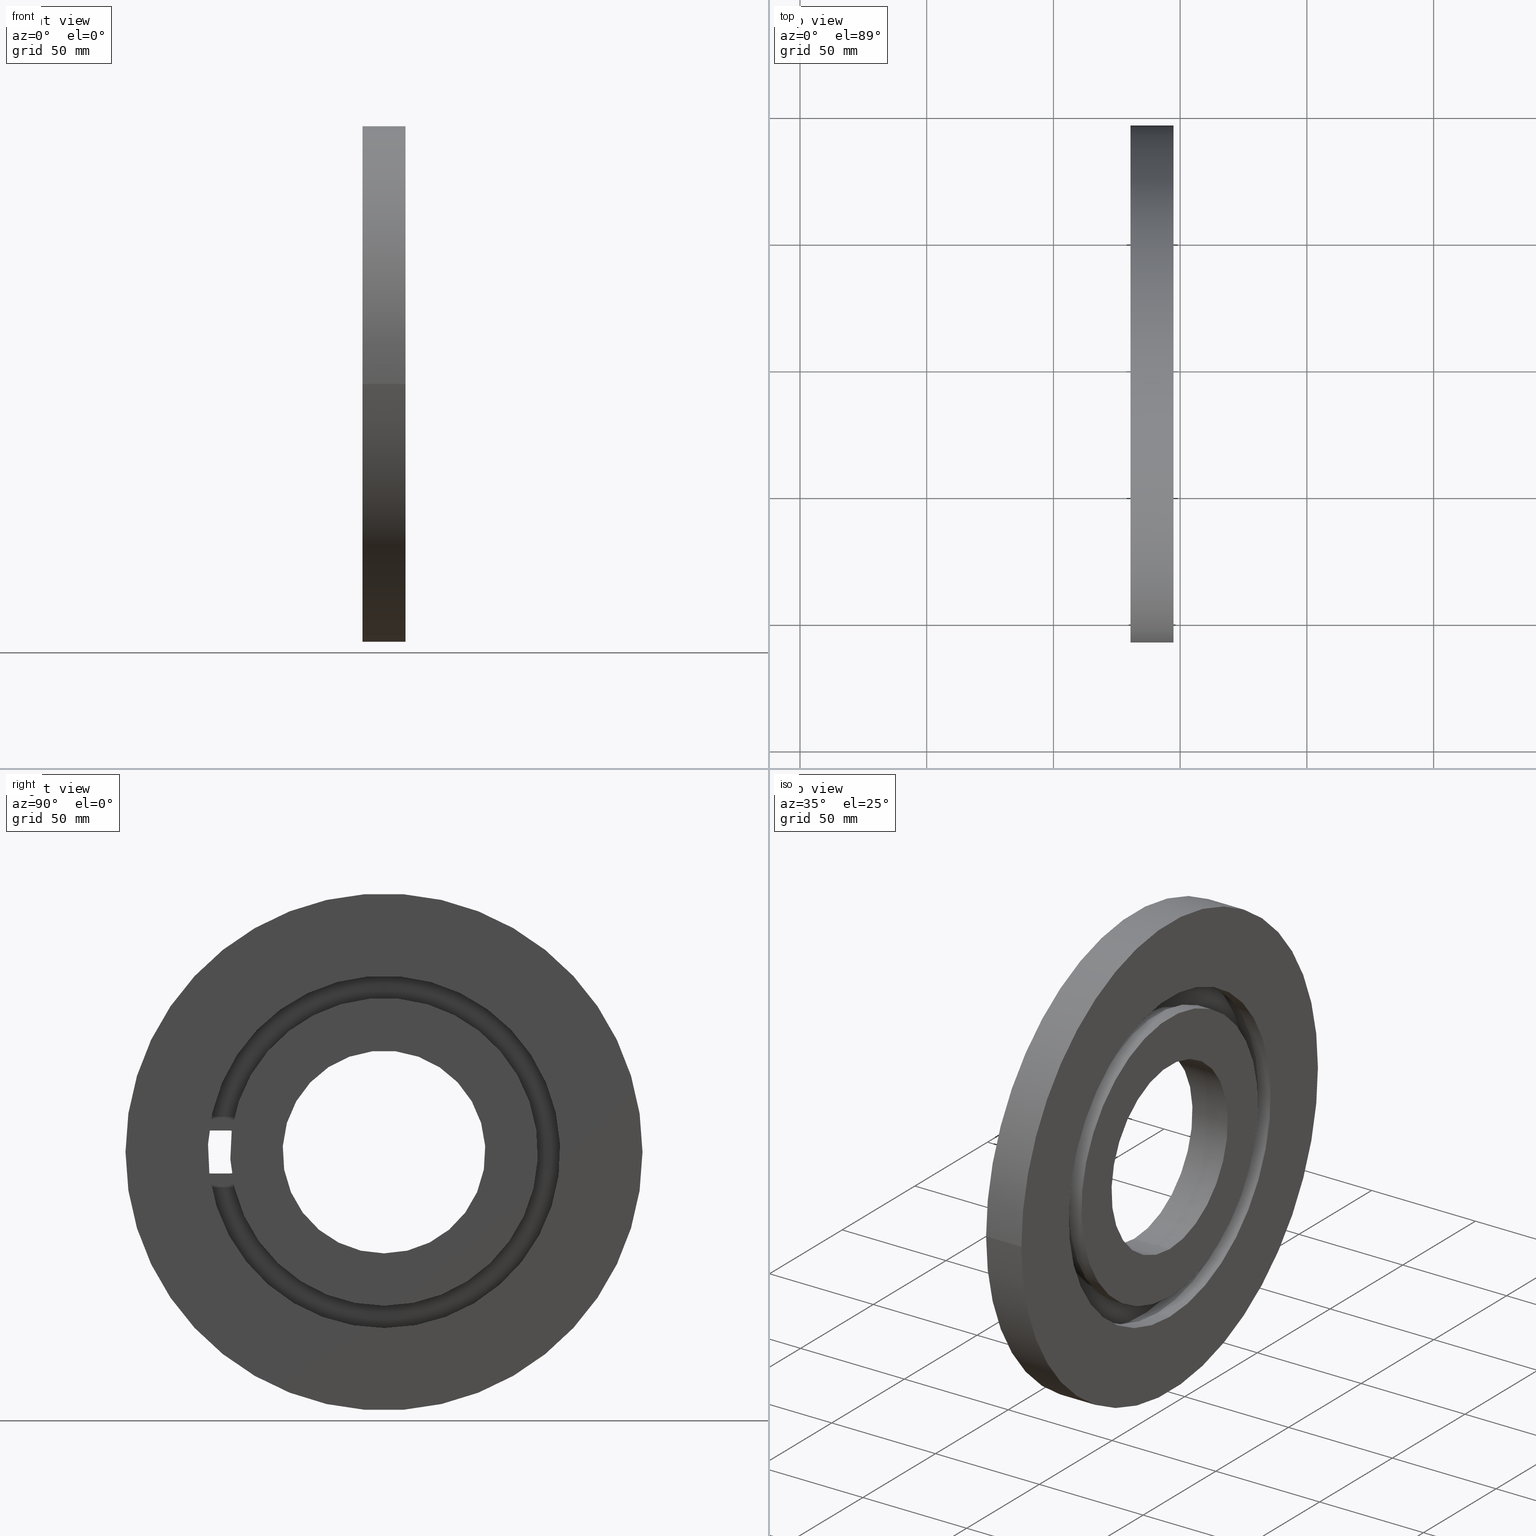
[diagram: canonical four-view strip — front | top / right | iso, engineering-drawing reading convention]
A machine part, canonical four-view strip (front | top / right | iso — engineering-drawing reading convention). The complete STEP part file that produces these views, byte-faithful:
ISO-10303-21;
HEADER;
/* Generated by software containing ST-Developer
 * from STEP Tools, Inc. (www.steptools.com) 
 */

FILE_DESCRIPTION(
/* description */ (''),
/* implementation_level */ '2;1');

FILE_NAME(
/* name */ 
'C:\\Vault_workspace\\Products\\Workspaces\\Jason Krenzer\\9.FL.F90T2-
PAR.stp',
/* time_stamp */ '2023-07-25T15:35:56-04:00',
/* author */ ('jkrenzer'),
/* organization */ (''),
/* preprocessor_version */ 'ST-DEVELOPER v18.1',
/* originating_system */ 'Autodesk Inventor 2022',
/* authorisation */ '');

FILE_SCHEMA (('AUTOMOTIVE_DESIGN { 1 0 10303 214 3 1 1 }'));
ENDSEC;

DATA;
#10=MECHANICAL_DESIGN_GEOMETRIC_PRESENTATION_REPRESENTATION('',(#17),#736);
#11=ITEM_DEFINED_TRANSFORMATION($,$,#432,#483);
#12=(
REPRESENTATION_RELATIONSHIP($,$,#750,#749)
REPRESENTATION_RELATIONSHIP_WITH_TRANSFORMATION(#11)
SHAPE_REPRESENTATION_RELATIONSHIP()
);
#13=CONTEXT_DEPENDENT_SHAPE_REPRESENTATION(#12,#748);
#14=NEXT_ASSEMBLY_USAGE_OCCURRENCE(
'9_FL_F90T2   (MTC, Universal Flange, Type 2):1',
'9_FL_F90T2   (MTC, Universal Flange, Type 2):1',
'9_FL_F90T2   (MTC, Universal Flange, Type 2):1',#752,#753,
'9_FL_F90T2   (MTC, Universal Flange, Type 2):1');
#15=SHAPE_REPRESENTATION_RELATIONSHIP('SRR','None',#750,#16);
#16=ADVANCED_BREP_SHAPE_REPRESENTATION('',(#18),#735);
#17=STYLED_ITEM('',(#410),#18);
#18=MANIFOLD_SOLID_BREP('Solid1',#397);
#19=LINE('',#626,#45);
#20=LINE('',#630,#46);
#21=LINE('',#634,#47);
#22=LINE('',#638,#48);
#23=LINE('',#642,#49);
#24=LINE('',#648,#50);
#25=LINE('',#650,#51);
#26=LINE('',#651,#52);
#27=LINE('',#655,#53);
#28=LINE('',#658,#54);
#29=LINE('',#664,#55);
#30=LINE('',#669,#56);
#31=LINE('',#681,#57);
#32=LINE('',#685,#58);
#33=LINE('',#688,#59);
#34=LINE('',#690,#60);
#35=LINE('',#696,#61);
#36=LINE('',#698,#62);
#37=LINE('',#702,#63);
#38=LINE('',#705,#64);
#39=LINE('',#708,#65);
#40=LINE('',#712,#66);
#41=LINE('',#718,#67);
#42=LINE('',#724,#68);
#43=LINE('',#726,#69);
#44=LINE('',#729,#70);
#45=VECTOR('',#498,102.);
#46=VECTOR('',#501,8.);
#47=VECTOR('',#504,9.);
#48=VECTOR('',#507,8.);
#49=VECTOR('',#510,9.);
#50=VECTOR('',#517,3.5);
#51=VECTOR('',#518,8.);
#52=VECTOR('',#519,3.5);
#53=VECTOR('',#522,0.4999999999999);
#54=VECTOR('',#525,4.);
#55=VECTOR('',#532,58.);
#56=VECTOR('',#537,0.4999999999999);
#57=VECTOR('',#550,8.);
#58=VECTOR('',#555,0.4999999999999);
#59=VECTOR('',#558,0.4999999999999);
#60=VECTOR('',#559,72.5);
#61=VECTOR('',#568,3.5);
#62=VECTOR('',#569,4.);
#63=VECTOR('',#574,9.);
#64=VECTOR('',#579,4.);
#65=VECTOR('',#584,3.5);
#66=VECTOR('',#589,4.);
#67=VECTOR('',#596,60.7);
#68=VECTOR('',#605,40.);
#69=VECTOR('',#608,9.);
#70=VECTOR('',#613,69.5);
#71=CYLINDRICAL_SURFACE('',#436,102.);
#72=CYLINDRICAL_SURFACE('',#445,4.);
#73=CYLINDRICAL_SURFACE('',#448,58.);
#74=CYLINDRICAL_SURFACE('',#459,72.5);
#75=CYLINDRICAL_SURFACE('',#464,4.);
#76=CYLINDRICAL_SURFACE('',#468,4.);
#77=CYLINDRICAL_SURFACE('',#471,4.);
#78=CYLINDRICAL_SURFACE('',#475,60.7);
#79=CYLINDRICAL_SURFACE('',#479,40.);
#80=CYLINDRICAL_SURFACE('',#482,69.5);
#81=FACE_BOUND('',#110,.T.);
#82=FACE_BOUND('',#113,.T.);
#83=FACE_BOUND('',#114,.T.);
#84=FACE_BOUND('',#121,.T.);
#85=FACE_BOUND('',#129,.T.);
#86=FACE_BOUND('',#132,.T.);
#87=FACE_OUTER_BOUND('',#109,.T.);
#88=FACE_OUTER_BOUND('',#111,.T.);
#89=FACE_OUTER_BOUND('',#112,.T.);
#90=FACE_OUTER_BOUND('',#115,.T.);
#91=FACE_OUTER_BOUND('',#116,.T.);
#92=FACE_OUTER_BOUND('',#117,.T.);
#93=FACE_OUTER_BOUND('',#118,.T.);
#94=FACE_OUTER_BOUND('',#119,.T.);
#95=FACE_OUTER_BOUND('',#120,.T.);
#96=FACE_OUTER_BOUND('',#122,.T.);
#97=FACE_OUTER_BOUND('',#123,.T.);
#98=FACE_OUTER_BOUND('',#124,.T.);
#99=FACE_OUTER_BOUND('',#125,.T.);
#100=FACE_OUTER_BOUND('',#126,.T.);
#101=FACE_OUTER_BOUND('',#127,.T.);
#102=FACE_OUTER_BOUND('',#128,.T.);
#103=FACE_OUTER_BOUND('',#130,.T.);
#104=FACE_OUTER_BOUND('',#131,.T.);
#105=FACE_OUTER_BOUND('',#133,.T.);
#106=FACE_OUTER_BOUND('',#134,.T.);
#107=FACE_OUTER_BOUND('',#135,.T.);
#108=FACE_OUTER_BOUND('',#136,.T.);
#109=EDGE_LOOP('',(#255));
#110=EDGE_LOOP('',(#256));
#111=EDGE_LOOP('',(#257,#258,#259,#260));
#112=EDGE_LOOP('',(#261));
#113=EDGE_LOOP('',(#262,#263,#264,#265,#266,#267,#268,#269));
#114=EDGE_LOOP('',(#270));
#115=EDGE_LOOP('',(#271,#272,#273,#274));
#116=EDGE_LOOP('',(#275,#276,#277,#278,#279,#280));
#117=EDGE_LOOP('',(#281,#282,#283,#284,#285,#286,#287,#288));
#118=EDGE_LOOP('',(#289,#290,#291,#292,#293,#294,#295,#296,#297,#298));
#119=EDGE_LOOP('',(#299,#300,#301,#302,#303,#304,#305,#306));
#120=EDGE_LOOP('',(#307));
#121=EDGE_LOOP('',(#308));
#122=EDGE_LOOP('',(#309,#310,#311,#312,#313,#314));
#123=EDGE_LOOP('',(#315,#316,#317,#318));
#124=EDGE_LOOP('',(#319,#320,#321,#322,#323,#324));
#125=EDGE_LOOP('',(#325,#326,#327,#328));
#126=EDGE_LOOP('',(#329,#330,#331,#332));
#127=EDGE_LOOP('',(#333,#334,#335,#336,#337,#338));
#128=EDGE_LOOP('',(#339));
#129=EDGE_LOOP('',(#340));
#130=EDGE_LOOP('',(#341,#342,#343,#344));
#131=EDGE_LOOP('',(#345));
#132=EDGE_LOOP('',(#346));
#133=EDGE_LOOP('',(#347,#348,#349,#350));
#134=EDGE_LOOP('',(#351,#352,#353,#354));
#135=EDGE_LOOP('',(#355,#356,#357,#358));
#136=EDGE_LOOP('',(#359,#360,#361,#362));
#137=CIRCLE('',#434,102.);
#138=CIRCLE('',#435,69.5);
#139=CIRCLE('',#437,102.);
#140=CIRCLE('',#439,4.);
#141=CIRCLE('',#440,4.);
#142=CIRCLE('',#441,4.);
#143=CIRCLE('',#442,4.);
#144=CIRCLE('',#443,40.);
#145=CIRCLE('',#446,4.);
#146=CIRCLE('',#447,4.);
#147=CIRCLE('',#449,58.);
#148=CIRCLE('',#450,58.);
#149=CIRCLE('',#451,58.);
#150=CIRCLE('',#452,58.);
#151=CIRCLE('',#454,72.5);
#152=CIRCLE('',#455,72.5);
#153=CIRCLE('',#456,4.);
#154=CIRCLE('',#457,4.);
#155=CIRCLE('',#458,4.);
#156=CIRCLE('',#460,72.5);
#157=CIRCLE('',#461,72.5);
#158=CIRCLE('',#463,69.5);
#159=CIRCLE('',#465,4.);
#160=CIRCLE('',#467,4.);
#161=CIRCLE('',#472,4.);
#162=CIRCLE('',#474,60.7);
#163=CIRCLE('',#476,60.7);
#164=CIRCLE('',#478,40.);
#165=VERTEX_POINT('',#619);
#166=VERTEX_POINT('',#621);
#167=VERTEX_POINT('',#624);
#168=VERTEX_POINT('',#628);
#169=VERTEX_POINT('',#629);
#170=VERTEX_POINT('',#631);
#171=VERTEX_POINT('',#633);
#172=VERTEX_POINT('',#635);
#173=VERTEX_POINT('',#637);
#174=VERTEX_POINT('',#639);
#175=VERTEX_POINT('',#641);
#176=VERTEX_POINT('',#644);
#177=VERTEX_POINT('',#647);
#178=VERTEX_POINT('',#649);
#179=VERTEX_POINT('',#653);
#180=VERTEX_POINT('',#654);
#181=VERTEX_POINT('',#657);
#182=VERTEX_POINT('',#661);
#183=VERTEX_POINT('',#663);
#184=VERTEX_POINT('',#666);
#185=VERTEX_POINT('',#668);
#186=VERTEX_POINT('',#672);
#187=VERTEX_POINT('',#673);
#188=VERTEX_POINT('',#675);
#189=VERTEX_POINT('',#678);
#190=VERTEX_POINT('',#680);
#191=VERTEX_POINT('',#684);
#192=VERTEX_POINT('',#686);
#193=VERTEX_POINT('',#689);
#194=VERTEX_POINT('',#693);
#195=VERTEX_POINT('',#697);
#196=VERTEX_POINT('',#701);
#197=VERTEX_POINT('',#710);
#198=VERTEX_POINT('',#714);
#199=VERTEX_POINT('',#717);
#200=VERTEX_POINT('',#721);
#201=EDGE_CURVE('',#165,#165,#137,.T.);
#202=EDGE_CURVE('',#166,#166,#138,.T.);
#203=EDGE_CURVE('',#167,#167,#139,.T.);
#204=EDGE_CURVE('',#167,#165,#19,.T.);
#205=EDGE_CURVE('',#168,#169,#20,.T.);
#206=EDGE_CURVE('',#168,#170,#140,.T.);
#207=EDGE_CURVE('',#171,#170,#21,.T.);
#208=EDGE_CURVE('',#171,#172,#141,.T.);
#209=EDGE_CURVE('',#173,#172,#22,.T.);
#210=EDGE_CURVE('',#173,#174,#142,.T.);
#211=EDGE_CURVE('',#175,#174,#23,.T.);
#212=EDGE_CURVE('',#175,#169,#143,.T.);
#213=EDGE_CURVE('',#176,#176,#144,.T.);
#214=EDGE_CURVE('',#177,#169,#24,.T.);
#215=EDGE_CURVE('',#177,#178,#25,.T.);
#216=EDGE_CURVE('',#168,#178,#26,.T.);
#217=EDGE_CURVE('',#179,#180,#27,.T.);
#218=EDGE_CURVE('',#177,#180,#145,.T.);
#219=EDGE_CURVE('',#175,#181,#28,.T.);
#220=EDGE_CURVE('',#179,#181,#146,.T.);
#221=EDGE_CURVE('',#182,#182,#147,.T.);
#222=EDGE_CURVE('',#182,#183,#29,.T.);
#223=EDGE_CURVE('',#180,#183,#148,.T.);
#224=EDGE_CURVE('',#184,#179,#149,.T.);
#225=EDGE_CURVE('',#184,#185,#30,.T.);
#226=EDGE_CURVE('',#183,#185,#150,.T.);
#227=EDGE_CURVE('',#186,#187,#151,.T.);
#228=EDGE_CURVE('',#187,#188,#152,.T.);
#229=EDGE_CURVE('',#188,#178,#153,.T.);
#230=EDGE_CURVE('',#185,#189,#154,.T.);
#231=EDGE_CURVE('',#190,#189,#31,.T.);
#232=EDGE_CURVE('',#190,#186,#155,.T.);
#233=EDGE_CURVE('',#191,#186,#32,.T.);
#234=EDGE_CURVE('',#192,#191,#156,.T.);
#235=EDGE_CURVE('',#192,#188,#33,.T.);
#236=EDGE_CURVE('',#187,#193,#34,.T.);
#237=EDGE_CURVE('',#193,#193,#157,.T.);
#238=EDGE_CURVE('',#194,#194,#158,.T.);
#239=EDGE_CURVE('',#190,#172,#35,.T.);
#240=EDGE_CURVE('',#171,#195,#36,.T.);
#241=EDGE_CURVE('',#191,#195,#159,.T.);
#242=EDGE_CURVE('',#195,#196,#37,.T.);
#243=EDGE_CURVE('',#196,#192,#160,.T.);
#244=EDGE_CURVE('',#196,#170,#38,.T.);
#245=EDGE_CURVE('',#173,#189,#39,.T.);
#246=EDGE_CURVE('',#197,#184,#161,.T.);
#247=EDGE_CURVE('',#197,#174,#40,.T.);
#248=EDGE_CURVE('',#198,#198,#162,.T.);
#249=EDGE_CURVE('',#198,#199,#41,.T.);
#250=EDGE_CURVE('',#199,#199,#163,.T.);
#251=EDGE_CURVE('',#200,#200,#164,.T.);
#252=EDGE_CURVE('',#200,#176,#42,.T.);
#253=EDGE_CURVE('',#181,#197,#43,.T.);
#254=EDGE_CURVE('',#166,#194,#44,.T.);
#255=ORIENTED_EDGE('',*,*,#201,.T.);
#256=ORIENTED_EDGE('',*,*,#202,.T.);
#257=ORIENTED_EDGE('',*,*,#203,.T.);
#258=ORIENTED_EDGE('',*,*,#204,.T.);
#259=ORIENTED_EDGE('',*,*,#201,.F.);
#260=ORIENTED_EDGE('',*,*,#204,.F.);
#261=ORIENTED_EDGE('',*,*,#203,.F.);
#262=ORIENTED_EDGE('',*,*,#205,.F.);
#263=ORIENTED_EDGE('',*,*,#206,.T.);
#264=ORIENTED_EDGE('',*,*,#207,.F.);
#265=ORIENTED_EDGE('',*,*,#208,.T.);
#266=ORIENTED_EDGE('',*,*,#209,.F.);
#267=ORIENTED_EDGE('',*,*,#210,.T.);
#268=ORIENTED_EDGE('',*,*,#211,.F.);
#269=ORIENTED_EDGE('',*,*,#212,.T.);
#270=ORIENTED_EDGE('',*,*,#213,.T.);
#271=ORIENTED_EDGE('',*,*,#214,.F.);
#272=ORIENTED_EDGE('',*,*,#215,.T.);
#273=ORIENTED_EDGE('',*,*,#216,.F.);
#274=ORIENTED_EDGE('',*,*,#205,.T.);
#275=ORIENTED_EDGE('',*,*,#217,.T.);
#276=ORIENTED_EDGE('',*,*,#218,.F.);
#277=ORIENTED_EDGE('',*,*,#214,.T.);
#278=ORIENTED_EDGE('',*,*,#212,.F.);
#279=ORIENTED_EDGE('',*,*,#219,.T.);
#280=ORIENTED_EDGE('',*,*,#220,.F.);
#281=ORIENTED_EDGE('',*,*,#221,.F.);
#282=ORIENTED_EDGE('',*,*,#222,.T.);
#283=ORIENTED_EDGE('',*,*,#223,.F.);
#284=ORIENTED_EDGE('',*,*,#217,.F.);
#285=ORIENTED_EDGE('',*,*,#224,.F.);
#286=ORIENTED_EDGE('',*,*,#225,.T.);
#287=ORIENTED_EDGE('',*,*,#226,.F.);
#288=ORIENTED_EDGE('',*,*,#222,.F.);
#289=ORIENTED_EDGE('',*,*,#227,.T.);
#290=ORIENTED_EDGE('',*,*,#228,.T.);
#291=ORIENTED_EDGE('',*,*,#229,.T.);
#292=ORIENTED_EDGE('',*,*,#215,.F.);
#293=ORIENTED_EDGE('',*,*,#218,.T.);
#294=ORIENTED_EDGE('',*,*,#223,.T.);
#295=ORIENTED_EDGE('',*,*,#226,.T.);
#296=ORIENTED_EDGE('',*,*,#230,.T.);
#297=ORIENTED_EDGE('',*,*,#231,.F.);
#298=ORIENTED_EDGE('',*,*,#232,.T.);
#299=ORIENTED_EDGE('',*,*,#227,.F.);
#300=ORIENTED_EDGE('',*,*,#233,.F.);
#301=ORIENTED_EDGE('',*,*,#234,.F.);
#302=ORIENTED_EDGE('',*,*,#235,.T.);
#303=ORIENTED_EDGE('',*,*,#228,.F.);
#304=ORIENTED_EDGE('',*,*,#236,.T.);
#305=ORIENTED_EDGE('',*,*,#237,.F.);
#306=ORIENTED_EDGE('',*,*,#236,.F.);
#307=ORIENTED_EDGE('',*,*,#237,.T.);
#308=ORIENTED_EDGE('',*,*,#238,.T.);
#309=ORIENTED_EDGE('',*,*,#233,.T.);
#310=ORIENTED_EDGE('',*,*,#232,.F.);
#311=ORIENTED_EDGE('',*,*,#239,.T.);
#312=ORIENTED_EDGE('',*,*,#208,.F.);
#313=ORIENTED_EDGE('',*,*,#240,.T.);
#314=ORIENTED_EDGE('',*,*,#241,.F.);
#315=ORIENTED_EDGE('',*,*,#241,.T.);
#316=ORIENTED_EDGE('',*,*,#242,.T.);
#317=ORIENTED_EDGE('',*,*,#243,.T.);
#318=ORIENTED_EDGE('',*,*,#234,.T.);
#319=ORIENTED_EDGE('',*,*,#235,.F.);
#320=ORIENTED_EDGE('',*,*,#243,.F.);
#321=ORIENTED_EDGE('',*,*,#244,.T.);
#322=ORIENTED_EDGE('',*,*,#206,.F.);
#323=ORIENTED_EDGE('',*,*,#216,.T.);
#324=ORIENTED_EDGE('',*,*,#229,.F.);
#325=ORIENTED_EDGE('',*,*,#244,.F.);
#326=ORIENTED_EDGE('',*,*,#242,.F.);
#327=ORIENTED_EDGE('',*,*,#240,.F.);
#328=ORIENTED_EDGE('',*,*,#207,.T.);
#329=ORIENTED_EDGE('',*,*,#239,.F.);
#330=ORIENTED_EDGE('',*,*,#231,.T.);
#331=ORIENTED_EDGE('',*,*,#245,.F.);
#332=ORIENTED_EDGE('',*,*,#209,.T.);
#333=ORIENTED_EDGE('',*,*,#225,.F.);
#334=ORIENTED_EDGE('',*,*,#246,.F.);
#335=ORIENTED_EDGE('',*,*,#247,.T.);
#336=ORIENTED_EDGE('',*,*,#210,.F.);
#337=ORIENTED_EDGE('',*,*,#245,.T.);
#338=ORIENTED_EDGE('',*,*,#230,.F.);
#339=ORIENTED_EDGE('',*,*,#248,.T.);
#340=ORIENTED_EDGE('',*,*,#221,.T.);
#341=ORIENTED_EDGE('',*,*,#248,.F.);
#342=ORIENTED_EDGE('',*,*,#249,.T.);
#343=ORIENTED_EDGE('',*,*,#250,.F.);
#344=ORIENTED_EDGE('',*,*,#249,.F.);
#345=ORIENTED_EDGE('',*,*,#250,.T.);
#346=ORIENTED_EDGE('',*,*,#251,.T.);
#347=ORIENTED_EDGE('',*,*,#251,.F.);
#348=ORIENTED_EDGE('',*,*,#252,.T.);
#349=ORIENTED_EDGE('',*,*,#213,.F.);
#350=ORIENTED_EDGE('',*,*,#252,.F.);
#351=ORIENTED_EDGE('',*,*,#220,.T.);
#352=ORIENTED_EDGE('',*,*,#253,.T.);
#353=ORIENTED_EDGE('',*,*,#246,.T.);
#354=ORIENTED_EDGE('',*,*,#224,.T.);
#355=ORIENTED_EDGE('',*,*,#211,.T.);
#356=ORIENTED_EDGE('',*,*,#247,.F.);
#357=ORIENTED_EDGE('',*,*,#253,.F.);
#358=ORIENTED_EDGE('',*,*,#219,.F.);
#359=ORIENTED_EDGE('',*,*,#202,.F.);
#360=ORIENTED_EDGE('',*,*,#254,.T.);
#361=ORIENTED_EDGE('',*,*,#238,.F.);
#362=ORIENTED_EDGE('',*,*,#254,.F.);
#363=PLANE('',#433);
#364=PLANE('',#438);
#365=PLANE('',#444);
#366=PLANE('',#453);
#367=PLANE('',#462);
#368=PLANE('',#466);
#369=PLANE('',#469);
#370=PLANE('',#470);
#371=PLANE('',#473);
#372=PLANE('',#477);
#373=PLANE('',#480);
#374=PLANE('',#481);
#375=ADVANCED_FACE('',(#87,#81),#363,.F.);
#376=ADVANCED_FACE('',(#88),#71,.T.);
#377=ADVANCED_FACE('',(#89,#82,#83),#364,.T.);
#378=ADVANCED_FACE('',(#90),#365,.T.);
#379=ADVANCED_FACE('',(#91),#72,.F.);
#380=ADVANCED_FACE('',(#92),#73,.T.);
#381=ADVANCED_FACE('',(#93),#366,.T.);
#382=ADVANCED_FACE('',(#94),#74,.F.);
#383=ADVANCED_FACE('',(#95,#84),#367,.F.);
#384=ADVANCED_FACE('',(#96),#75,.F.);
#385=ADVANCED_FACE('',(#97),#368,.T.);
#386=ADVANCED_FACE('',(#98),#76,.F.);
#387=ADVANCED_FACE('',(#99),#369,.T.);
#388=ADVANCED_FACE('',(#100),#370,.T.);
#389=ADVANCED_FACE('',(#101),#77,.F.);
#390=ADVANCED_FACE('',(#102,#85),#371,.F.);
#391=ADVANCED_FACE('',(#103),#78,.T.);
#392=ADVANCED_FACE('',(#104,#86),#372,.F.);
#393=ADVANCED_FACE('',(#105),#79,.F.);
#394=ADVANCED_FACE('',(#106),#373,.T.);
#395=ADVANCED_FACE('',(#107),#374,.T.);
#396=ADVANCED_FACE('',(#108),#80,.F.);
#397=CLOSED_SHELL('',(#375,#376,#377,#378,#379,#380,#381,#382,#383,#384,
#385,#386,#387,#388,#389,#390,#391,#392,#393,#394,#395,#396));
#398=DERIVED_UNIT_ELEMENT(#400,1.);
#399=DERIVED_UNIT_ELEMENT(#740,-3.);
#400=(
MASS_UNIT()
NAMED_UNIT(*)
SI_UNIT($,.GRAM.)
);
#401=DERIVED_UNIT((#398,#399));
#402=MEASURE_REPRESENTATION_ITEM('density measure',
POSITIVE_RATIO_MEASURE(1.),#401);
#403=PROPERTY_DEFINITION_REPRESENTATION(#408,#405);
#404=PROPERTY_DEFINITION_REPRESENTATION(#409,#406);
#405=REPRESENTATION('material name',(#407),#735);
#406=REPRESENTATION('density',(#402),#735);
#407=DESCRIPTIVE_REPRESENTATION_ITEM('Generic','Generic');
#408=PROPERTY_DEFINITION('material property','material name',#753);
#409=PROPERTY_DEFINITION('material property','density of part',#753);
#410=PRESENTATION_STYLE_ASSIGNMENT((#411));
#411=SURFACE_STYLE_USAGE(.BOTH.,#414);
#412=SURFACE_STYLE_RENDERING_WITH_PROPERTIES($,#418,(#413));
#413=SURFACE_STYLE_TRANSPARENT(0.);
#414=SURFACE_SIDE_STYLE('',(#415,#412));
#415=SURFACE_STYLE_FILL_AREA(#416);
#416=FILL_AREA_STYLE('',(#417));
#417=FILL_AREA_STYLE_COLOUR('',#418);
#418=COLOUR_RGB('',0.749019607843137,0.749019607843137,0.749019607843137);
#419=DATE_TIME_ROLE('creation_date');
#420=DATE_TIME_ROLE('creation_date');
#421=APPLIED_DATE_AND_TIME_ASSIGNMENT(#423,#419,(#752));
#422=APPLIED_DATE_AND_TIME_ASSIGNMENT(#424,#420,(#753));
#423=DATE_AND_TIME(#425,#427);
#424=DATE_AND_TIME(#426,#428);
#425=CALENDAR_DATE(2023,25,7);
#426=CALENDAR_DATE(2014,18,11);
#427=LOCAL_TIME(0,0,0.,#429);
#428=LOCAL_TIME(11,30,24.,#430);
#429=COORDINATED_UNIVERSAL_TIME_OFFSET(0,0,.BEHIND.);
#430=COORDINATED_UNIVERSAL_TIME_OFFSET(0,0,.BEHIND.);
#431=AXIS2_PLACEMENT_3D('placement',#616,#484,#485);
#432=AXIS2_PLACEMENT_3D('placement',#617,#486,#487);
#433=AXIS2_PLACEMENT_3D('',#618,#488,#489);
#434=AXIS2_PLACEMENT_3D('',#620,#490,#491);
#435=AXIS2_PLACEMENT_3D('',#622,#492,#493);
#436=AXIS2_PLACEMENT_3D('',#623,#494,#495);
#437=AXIS2_PLACEMENT_3D('',#625,#496,#497);
#438=AXIS2_PLACEMENT_3D('',#627,#499,#500);
#439=AXIS2_PLACEMENT_3D('',#632,#502,#503);
#440=AXIS2_PLACEMENT_3D('',#636,#505,#506);
#441=AXIS2_PLACEMENT_3D('',#640,#508,#509);
#442=AXIS2_PLACEMENT_3D('',#643,#511,#512);
#443=AXIS2_PLACEMENT_3D('',#645,#513,#514);
#444=AXIS2_PLACEMENT_3D('',#646,#515,#516);
#445=AXIS2_PLACEMENT_3D('',#652,#520,#521);
#446=AXIS2_PLACEMENT_3D('',#656,#523,#524);
#447=AXIS2_PLACEMENT_3D('',#659,#526,#527);
#448=AXIS2_PLACEMENT_3D('',#660,#528,#529);
#449=AXIS2_PLACEMENT_3D('',#662,#530,#531);
#450=AXIS2_PLACEMENT_3D('',#665,#533,#534);
#451=AXIS2_PLACEMENT_3D('',#667,#535,#536);
#452=AXIS2_PLACEMENT_3D('',#670,#538,#539);
#453=AXIS2_PLACEMENT_3D('',#671,#540,#541);
#454=AXIS2_PLACEMENT_3D('',#674,#542,#543);
#455=AXIS2_PLACEMENT_3D('',#676,#544,#545);
#456=AXIS2_PLACEMENT_3D('',#677,#546,#547);
#457=AXIS2_PLACEMENT_3D('',#679,#548,#549);
#458=AXIS2_PLACEMENT_3D('',#682,#551,#552);
#459=AXIS2_PLACEMENT_3D('',#683,#553,#554);
#460=AXIS2_PLACEMENT_3D('',#687,#556,#557);
#461=AXIS2_PLACEMENT_3D('',#691,#560,#561);
#462=AXIS2_PLACEMENT_3D('',#692,#562,#563);
#463=AXIS2_PLACEMENT_3D('',#694,#564,#565);
#464=AXIS2_PLACEMENT_3D('',#695,#566,#567);
#465=AXIS2_PLACEMENT_3D('',#699,#570,#571);
#466=AXIS2_PLACEMENT_3D('',#700,#572,#573);
#467=AXIS2_PLACEMENT_3D('',#703,#575,#576);
#468=AXIS2_PLACEMENT_3D('',#704,#577,#578);
#469=AXIS2_PLACEMENT_3D('',#706,#580,#581);
#470=AXIS2_PLACEMENT_3D('',#707,#582,#583);
#471=AXIS2_PLACEMENT_3D('',#709,#585,#586);
#472=AXIS2_PLACEMENT_3D('',#711,#587,#588);
#473=AXIS2_PLACEMENT_3D('',#713,#590,#591);
#474=AXIS2_PLACEMENT_3D('',#715,#592,#593);
#475=AXIS2_PLACEMENT_3D('',#716,#594,#595);
#476=AXIS2_PLACEMENT_3D('',#719,#597,#598);
#477=AXIS2_PLACEMENT_3D('',#720,#599,#600);
#478=AXIS2_PLACEMENT_3D('',#722,#601,#602);
#479=AXIS2_PLACEMENT_3D('',#723,#603,#604);
#480=AXIS2_PLACEMENT_3D('',#725,#606,#607);
#481=AXIS2_PLACEMENT_3D('',#727,#609,#610);
#482=AXIS2_PLACEMENT_3D('',#728,#611,#612);
#483=AXIS2_PLACEMENT_3D('',#730,#614,#615);
#484=DIRECTION('axis',(0.,0.,1.));
#485=DIRECTION('refdir',(1.,0.,0.));
#486=DIRECTION('axis',(0.,0.,1.));
#487=DIRECTION('refdir',(1.,0.,0.));
#488=DIRECTION('center_axis',(-1.,0.,0.));
#489=DIRECTION('ref_axis',(0.,0.,1.));
#490=DIRECTION('center_axis',(1.,0.,0.));
#491=DIRECTION('ref_axis',(0.,1.,0.));
#492=DIRECTION('center_axis',(-1.,0.,0.));
#493=DIRECTION('ref_axis',(0.,0.,-1.));
#494=DIRECTION('center_axis',(-1.,0.,0.));
#495=DIRECTION('ref_axis',(0.,1.,0.));
#496=DIRECTION('center_axis',(1.,0.,0.));
#497=DIRECTION('ref_axis',(0.,1.,0.));
#498=DIRECTION('',(1.,0.,0.));
#499=DIRECTION('center_axis',(-1.,0.,0.));
#500=DIRECTION('ref_axis',(0.,0.,1.));
#501=DIRECTION('',(0.,1.,0.));
#502=DIRECTION('center_axis',(1.,0.,0.));
#503=DIRECTION('ref_axis',(0.,0.,1.));
#504=DIRECTION('',(0.,0.,1.));
#505=DIRECTION('center_axis',(1.,0.,0.));
#506=DIRECTION('ref_axis',(0.,-1.,0.));
#507=DIRECTION('',(0.,-1.,0.));
#508=DIRECTION('center_axis',(1.,0.,0.));
#509=DIRECTION('ref_axis',(0.,0.,-1.));
#510=DIRECTION('',(0.,0.,-1.));
#511=DIRECTION('center_axis',(1.,0.,0.));
#512=DIRECTION('ref_axis',(0.,1.,0.));
#513=DIRECTION('center_axis',(1.,0.,0.));
#514=DIRECTION('ref_axis',(0.,0.,1.));
#515=DIRECTION('center_axis',(0.,0.,-1.));
#516=DIRECTION('ref_axis',(0.,1.,0.));
#517=DIRECTION('',(-1.,0.,0.));
#518=DIRECTION('',(0.,-1.,0.));
#519=DIRECTION('',(1.,0.,0.));
#520=DIRECTION('center_axis',(-1.,0.,0.));
#521=DIRECTION('ref_axis',(0.,0.,1.));
#522=DIRECTION('',(-1.,-1.42108547152E-14,0.));
#523=DIRECTION('center_axis',(-1.,0.,0.));
#524=DIRECTION('ref_axis',(0.,0.,1.));
#525=DIRECTION('',(1.,0.,0.));
#526=DIRECTION('center_axis',(-1.,0.,0.));
#527=DIRECTION('ref_axis',(0.,0.845259832961315,0.534355513476009));
#528=DIRECTION('center_axis',(1.,0.,0.));
#529=DIRECTION('ref_axis',(0.,-1.,0.));
#530=DIRECTION('center_axis',(1.,0.,0.));
#531=DIRECTION('ref_axis',(0.,1.,0.));
#532=DIRECTION('',(-1.,0.,0.));
#533=DIRECTION('center_axis',(-1.,0.,0.));
#534=DIRECTION('ref_axis',(0.,-0.993430356347494,0.114438311274199));
#535=DIRECTION('center_axis',(-1.,0.,0.));
#536=DIRECTION('ref_axis',(0.,-0.993430356347494,-0.114438311274199));
#537=DIRECTION('',(-1.,1.42108547152E-14,0.));
#538=DIRECTION('center_axis',(-1.,0.,0.));
#539=DIRECTION('ref_axis',(0.,-0.993430356347494,0.114438311274199));
#540=DIRECTION('center_axis',(1.,0.,0.));
#541=DIRECTION('ref_axis',(0.,-1.,0.));
#542=DIRECTION('center_axis',(1.,0.,0.));
#543=DIRECTION('ref_axis',(0.,1.,0.));
#544=DIRECTION('center_axis',(1.,0.,0.));
#545=DIRECTION('ref_axis',(0.,1.,0.));
#546=DIRECTION('center_axis',(-1.,0.,0.));
#547=DIRECTION('ref_axis',(0.,-0.791677911436083,0.610938691313787));
#548=DIRECTION('center_axis',(-1.,0.,0.));
#549=DIRECTION('ref_axis',(0.,0.845259832961315,-0.534355513476009));
#550=DIRECTION('',(0.,1.,0.));
#551=DIRECTION('center_axis',(-1.,0.,0.));
#552=DIRECTION('ref_axis',(0.,0.,-1.));
#553=DIRECTION('center_axis',(1.,0.,0.));
#554=DIRECTION('ref_axis',(0.,-1.,0.));
#555=DIRECTION('',(-1.,0.,0.));
#556=DIRECTION('center_axis',(1.,0.,0.));
#557=DIRECTION('ref_axis',(0.,-0.995402919251645,0.0957759277966243));
#558=DIRECTION('',(-1.,0.,-1.42108547152E-14));
#559=DIRECTION('',(1.,0.,0.));
#560=DIRECTION('center_axis',(-1.,0.,0.));
#561=DIRECTION('ref_axis',(0.,-1.,0.));
#562=DIRECTION('center_axis',(1.,0.,0.));
#563=DIRECTION('ref_axis',(0.,-1.,0.));
#564=DIRECTION('center_axis',(1.,0.,0.));
#565=DIRECTION('ref_axis',(0.,0.,1.));
#566=DIRECTION('center_axis',(-1.,0.,0.));
#567=DIRECTION('ref_axis',(0.,0.,1.));
#568=DIRECTION('',(-1.,0.,0.));
#569=DIRECTION('',(1.,0.,0.));
#570=DIRECTION('center_axis',(-1.,0.,0.));
#571=DIRECTION('ref_axis',(0.,-0.791677911436083,-0.610938691313787));
#572=DIRECTION('center_axis',(-1.,0.,0.));
#573=DIRECTION('ref_axis',(0.,0.,1.));
#574=DIRECTION('',(0.,0.,1.));
#575=DIRECTION('center_axis',(-1.,0.,0.));
#576=DIRECTION('ref_axis',(0.,-1.,0.));
#577=DIRECTION('center_axis',(-1.,0.,0.));
#578=DIRECTION('ref_axis',(0.,0.,1.));
#579=DIRECTION('',(-1.,0.,0.));
#580=DIRECTION('center_axis',(0.,1.,0.));
#581=DIRECTION('ref_axis',(0.,0.,1.));
#582=DIRECTION('center_axis',(0.,0.,1.));
#583=DIRECTION('ref_axis',(0.,-1.,0.));
#584=DIRECTION('',(1.,0.,0.));
#585=DIRECTION('center_axis',(1.,0.,0.));
#586=DIRECTION('ref_axis',(0.,0.,-1.));
#587=DIRECTION('center_axis',(-1.,0.,0.));
#588=DIRECTION('ref_axis',(0.,1.,0.));
#589=DIRECTION('',(-1.,0.,0.));
#590=DIRECTION('center_axis',(1.,0.,0.));
#591=DIRECTION('ref_axis',(0.,-1.,0.));
#592=DIRECTION('center_axis',(-1.,0.,0.));
#593=DIRECTION('ref_axis',(0.,0.,-1.));
#594=DIRECTION('center_axis',(-1.,0.,0.));
#595=DIRECTION('ref_axis',(0.,0.,1.));
#596=DIRECTION('',(1.,0.,0.));
#597=DIRECTION('center_axis',(1.,0.,0.));
#598=DIRECTION('ref_axis',(0.,0.,1.));
#599=DIRECTION('center_axis',(-1.,0.,0.));
#600=DIRECTION('ref_axis',(0.,0.,1.));
#601=DIRECTION('center_axis',(-1.,0.,0.));
#602=DIRECTION('ref_axis',(0.,0.,-1.));
#603=DIRECTION('center_axis',(-1.,0.,0.));
#604=DIRECTION('ref_axis',(0.,0.,1.));
#605=DIRECTION('',(-1.,0.,0.));
#606=DIRECTION('center_axis',(-1.,0.,0.));
#607=DIRECTION('ref_axis',(0.,0.,1.));
#608=DIRECTION('',(0.,0.,-1.));
#609=DIRECTION('center_axis',(0.,-1.,0.));
#610=DIRECTION('ref_axis',(0.,0.,-1.));
#611=DIRECTION('center_axis',(-1.,0.,0.));
#612=DIRECTION('ref_axis',(0.,0.,1.));
#613=DIRECTION('',(-1.,0.,0.));
#614=DIRECTION('',(0.,0.,1.));
#615=DIRECTION('',(1.,0.,0.));
#616=CARTESIAN_POINT('',(0.,0.,0.));
#617=CARTESIAN_POINT('',(0.,0.,0.));
#618=CARTESIAN_POINT('Origin',(31.,43.625,0.));
#619=CARTESIAN_POINT('',(31.,-102.,-1.50990331349E-14));
#620=CARTESIAN_POINT('Origin',(31.,0.,0.));
#621=CARTESIAN_POINT('',(31.,-8.51129525407411E-15,-69.5));
#622=CARTESIAN_POINT('Origin',(31.,0.,0.));
#623=CARTESIAN_POINT('Origin',(303.1531853339,0.,0.));
#624=CARTESIAN_POINT('',(14.,-102.,-1.50990331349E-14));
#625=CARTESIAN_POINT('Origin',(14.,0.,0.));
#626=CARTESIAN_POINT('',(303.1531853339,-102.,1.2491397351303E-14));
#627=CARTESIAN_POINT('Origin',(14.,43.625,0.));
#628=CARTESIAN_POINT('',(14.,-69.,8.5));
#629=CARTESIAN_POINT('',(14.,-61.,8.5));
#630=CARTESIAN_POINT('',(14.,-69.,8.5));
#631=CARTESIAN_POINT('',(14.,-73.,4.5));
#632=CARTESIAN_POINT('Origin',(14.,-69.,4.5));
#633=CARTESIAN_POINT('',(14.,-73.,-4.5));
#634=CARTESIAN_POINT('',(14.,-73.,-4.5));
#635=CARTESIAN_POINT('',(14.,-69.,-8.5));
#636=CARTESIAN_POINT('Origin',(14.,-69.,-4.5));
#637=CARTESIAN_POINT('',(14.,-61.,-8.5));
#638=CARTESIAN_POINT('',(14.,-61.,-8.5));
#639=CARTESIAN_POINT('',(14.,-57.,-4.5));
#640=CARTESIAN_POINT('Origin',(14.,-61.,-4.5));
#641=CARTESIAN_POINT('',(14.,-57.,4.5));
#642=CARTESIAN_POINT('',(14.,-57.,4.5));
#643=CARTESIAN_POINT('Origin',(14.,-61.,4.5));
#644=CARTESIAN_POINT('',(14.,0.,-40.));
#645=CARTESIAN_POINT('Origin',(14.,0.,0.));
#646=CARTESIAN_POINT('Origin',(14.,-57.,8.5));
#647=CARTESIAN_POINT('',(17.5,-61.,8.5));
#648=CARTESIAN_POINT('',(17.5,-61.,8.5));
#649=CARTESIAN_POINT('',(17.5,-69.,8.5));
#650=CARTESIAN_POINT('',(17.5,-61.,8.5));
#651=CARTESIAN_POINT('',(14.,-69.,8.5));
#652=CARTESIAN_POINT('Origin',(31.,-61.,4.5));
#653=CARTESIAN_POINT('',(18.,-57.61896066815,6.637422053904));
#654=CARTESIAN_POINT('',(17.5,-57.61896066815,6.637422053904));
#655=CARTESIAN_POINT('',(18.,-57.61896066815,6.637422053904));
#656=CARTESIAN_POINT('Origin',(17.5,-61.,4.5));
#657=CARTESIAN_POINT('',(18.,-57.,4.5));
#658=CARTESIAN_POINT('',(14.,-57.,4.5));
#659=CARTESIAN_POINT('Origin',(18.,-61.,4.5));
#660=CARTESIAN_POINT('Origin',(25.,0.,0.));
#661=CARTESIAN_POINT('',(25.,58.,0.));
#662=CARTESIAN_POINT('Origin',(25.,0.,0.));
#663=CARTESIAN_POINT('',(17.5,58.,7.10295143505465E-15));
#664=CARTESIAN_POINT('',(25.,58.,7.10295143505465E-15));
#665=CARTESIAN_POINT('Origin',(17.5,0.,0.));
#666=CARTESIAN_POINT('',(18.,-57.61896066815,-6.637422053904));
#667=CARTESIAN_POINT('Origin',(18.,0.,0.));
#668=CARTESIAN_POINT('',(17.5,-57.61896066815,-6.637422053904));
#669=CARTESIAN_POINT('',(18.,-57.61896066815,-6.637422053904));
#670=CARTESIAN_POINT('Origin',(17.5,0.,0.));
#671=CARTESIAN_POINT('Origin',(17.5,0.,-64.));
#672=CARTESIAN_POINT('',(17.5,-72.16671164574,-6.943754765255));
#673=CARTESIAN_POINT('',(17.5,72.5,8.87868929381831E-15));
#674=CARTESIAN_POINT('Origin',(17.5,0.,0.));
#675=CARTESIAN_POINT('',(17.5,-72.16671164574,6.943754765255));
#676=CARTESIAN_POINT('Origin',(17.5,0.,0.));
#677=CARTESIAN_POINT('Origin',(17.5,-69.,4.5));
#678=CARTESIAN_POINT('',(17.5,-61.,-8.5));
#679=CARTESIAN_POINT('Origin',(17.5,-61.,-4.5));
#680=CARTESIAN_POINT('',(17.5,-69.,-8.5));
#681=CARTESIAN_POINT('',(17.5,-69.,-8.5));
#682=CARTESIAN_POINT('Origin',(17.5,-69.,-4.5));
#683=CARTESIAN_POINT('Origin',(25.,0.,0.));
#684=CARTESIAN_POINT('',(18.,-72.16671164574,-6.943754765255));
#685=CARTESIAN_POINT('',(18.,-72.16671164574,-6.943754765255));
#686=CARTESIAN_POINT('',(18.,-72.16671164574,6.943754765255));
#687=CARTESIAN_POINT('Origin',(18.,0.,0.));
#688=CARTESIAN_POINT('',(18.,-72.16671164574,6.943754765255));
#689=CARTESIAN_POINT('',(25.,72.5,0.));
#690=CARTESIAN_POINT('',(25.,72.5,8.87868929381831E-15));
#691=CARTESIAN_POINT('Origin',(25.,0.,0.));
#692=CARTESIAN_POINT('Origin',(25.,0.,-64.));
#693=CARTESIAN_POINT('',(25.,-8.51129525407411E-15,-69.5));
#694=CARTESIAN_POINT('Origin',(25.,0.,0.));
#695=CARTESIAN_POINT('Origin',(31.,-69.,-4.5));
#696=CARTESIAN_POINT('',(17.5,-69.,-8.5));
#697=CARTESIAN_POINT('',(18.,-73.,-4.5));
#698=CARTESIAN_POINT('',(14.,-73.,-4.5));
#699=CARTESIAN_POINT('Origin',(18.,-69.,-4.5));
#700=CARTESIAN_POINT('Origin',(18.,-61.,0.));
#701=CARTESIAN_POINT('',(18.,-73.,4.5));
#702=CARTESIAN_POINT('',(18.,-73.,-4.5));
#703=CARTESIAN_POINT('Origin',(18.,-69.,4.5));
#704=CARTESIAN_POINT('Origin',(31.,-69.,4.5));
#705=CARTESIAN_POINT('',(18.,-73.,4.5));
#706=CARTESIAN_POINT('Origin',(14.,-73.,8.5));
#707=CARTESIAN_POINT('Origin',(14.,-73.,-8.5));
#708=CARTESIAN_POINT('',(14.,-61.,-8.5));
#709=CARTESIAN_POINT('Origin',(31.,-61.,-4.5));
#710=CARTESIAN_POINT('',(18.,-57.,-4.5));
#711=CARTESIAN_POINT('Origin',(18.,-61.,-4.5));
#712=CARTESIAN_POINT('',(18.,-57.,-4.5));
#713=CARTESIAN_POINT('Origin',(25.,0.,-64.));
#714=CARTESIAN_POINT('',(25.,0.,-60.7));
#715=CARTESIAN_POINT('Origin',(25.,0.,0.));
#716=CARTESIAN_POINT('Origin',(46.,0.,0.));
#717=CARTESIAN_POINT('',(31.,0.,-60.7));
#718=CARTESIAN_POINT('',(46.,-7.43360607082443E-15,-60.7));
#719=CARTESIAN_POINT('Origin',(31.,0.,0.));
#720=CARTESIAN_POINT('Origin',(31.,43.625,0.));
#721=CARTESIAN_POINT('',(31.,0.,-40.));
#722=CARTESIAN_POINT('Origin',(31.,0.,0.));
#723=CARTESIAN_POINT('Origin',(31.,0.,0.));
#724=CARTESIAN_POINT('',(31.,-4.89858719658941E-15,-40.));
#725=CARTESIAN_POINT('Origin',(18.,-61.,0.));
#726=CARTESIAN_POINT('',(18.,-57.,4.5));
#727=CARTESIAN_POINT('Origin',(14.,-57.,-8.5));
#728=CARTESIAN_POINT('Origin',(46.,0.,0.));
#729=CARTESIAN_POINT('',(46.,-8.51129525407411E-15,-69.5));
#730=CARTESIAN_POINT('',(-5.26009416200387,-4.19736193698891,-1.69743658602495));
#731=UNCERTAINTY_MEASURE_WITH_UNIT(LENGTH_MEASURE(0.000393700787401575),
#738,'DISTANCE_ACCURACY_VALUE',
'Maximum model space distance between geometric entities at asserted c
onnectivities');
#732=UNCERTAINTY_MEASURE_WITH_UNIT(LENGTH_MEASURE(0.01),#739,
'DISTANCE_ACCURACY_VALUE',
'Maximum model space distance between geometric entities at asserted c
onnectivities');
#733=UNCERTAINTY_MEASURE_WITH_UNIT(LENGTH_MEASURE(0.000393700787401575),
#738,'DISTANCE_ACCURACY_VALUE',
'Maximum model space distance between geometric entities at asserted c
onnectivities');
#734=(
GEOMETRIC_REPRESENTATION_CONTEXT(3)
GLOBAL_UNCERTAINTY_ASSIGNED_CONTEXT((#731))
GLOBAL_UNIT_ASSIGNED_CONTEXT((#738,#742,#743))
REPRESENTATION_CONTEXT('','3D')
);
#735=(
GEOMETRIC_REPRESENTATION_CONTEXT(3)
GLOBAL_UNCERTAINTY_ASSIGNED_CONTEXT((#732))
GLOBAL_UNIT_ASSIGNED_CONTEXT((#739,#742,#743))
REPRESENTATION_CONTEXT('','3D')
);
#736=(
GEOMETRIC_REPRESENTATION_CONTEXT(3)
GLOBAL_UNCERTAINTY_ASSIGNED_CONTEXT((#733))
GLOBAL_UNIT_ASSIGNED_CONTEXT((#738,#742,#743))
REPRESENTATION_CONTEXT('','3D')
);
#737=DIMENSIONAL_EXPONENTS(1.,0.,0.,0.,0.,0.,0.);
#738=(
CONVERSION_BASED_UNIT('inch',#741)
LENGTH_UNIT()
NAMED_UNIT(#737)
);
#739=(
LENGTH_UNIT()
NAMED_UNIT(*)
SI_UNIT(.MILLI.,.METRE.)
);
#740=(
LENGTH_UNIT()
NAMED_UNIT(*)
SI_UNIT(.CENTI.,.METRE.)
);
#741=LENGTH_MEASURE_WITH_UNIT(LENGTH_MEASURE(25.4),#739);
#742=(
NAMED_UNIT(*)
PLANE_ANGLE_UNIT()
SI_UNIT($,.RADIAN.)
);
#743=(
NAMED_UNIT(*)
SI_UNIT($,.STERADIAN.)
SOLID_ANGLE_UNIT()
);
#744=SHAPE_DEFINITION_REPRESENTATION(#746,#749);
#745=SHAPE_DEFINITION_REPRESENTATION(#747,#750);
#746=PRODUCT_DEFINITION_SHAPE('',$,#752);
#747=PRODUCT_DEFINITION_SHAPE('',$,#753);
#748=PRODUCT_DEFINITION_SHAPE($,$,#14);
#749=SHAPE_REPRESENTATION('',(#431,#483),#734);
#750=SHAPE_REPRESENTATION('',(#432),#735);
#751=PRODUCT_DEFINITION_CONTEXT('part definition',#759,'design');
#752=PRODUCT_DEFINITION('9.FL.F90T2-PAR','9.FL.F90T2-PAR',#754,#751);
#753=PRODUCT_DEFINITION('9_FL_F90T2   (MTC, Universal Flange, Type 2)',
'9_FL_F90T2   (MTC, Universal Flange, Type 2)',#755,#751);
#754=PRODUCT_DEFINITION_FORMATION('',$,#761);
#755=PRODUCT_DEFINITION_FORMATION('1LAST_VERSION',$,#762);
#756=PRODUCT_RELATED_PRODUCT_CATEGORY('9.FL.F90T2-PAR','9.FL.F90T2-PAR',
(#761));
#757=PRODUCT_RELATED_PRODUCT_CATEGORY(
'9_FL_F90T2   (MTC, Universal Flange, Type 2)',
'9_FL_F90T2   (MTC, Universal Flange, Type 2)',(#762));
#758=APPLICATION_PROTOCOL_DEFINITION('international standard',
'automotive_design',2009,#759);
#759=APPLICATION_CONTEXT(
'Core Data for Automotive Mechanical Design Process');
#760=PRODUCT_CONTEXT('part definition',#759,'mechanical');
#761=PRODUCT('9.FL.F90T2-PAR','9.FL.F90T2-PAR',$,(#760));
#762=PRODUCT('9_FL_F90T2   (MTC, Universal Flange, Type 2)',
'9_FL_F90T2   (MTC, Universal Flange, Type 2)',$,(#760));
ENDSEC;
END-ISO-10303-21;
